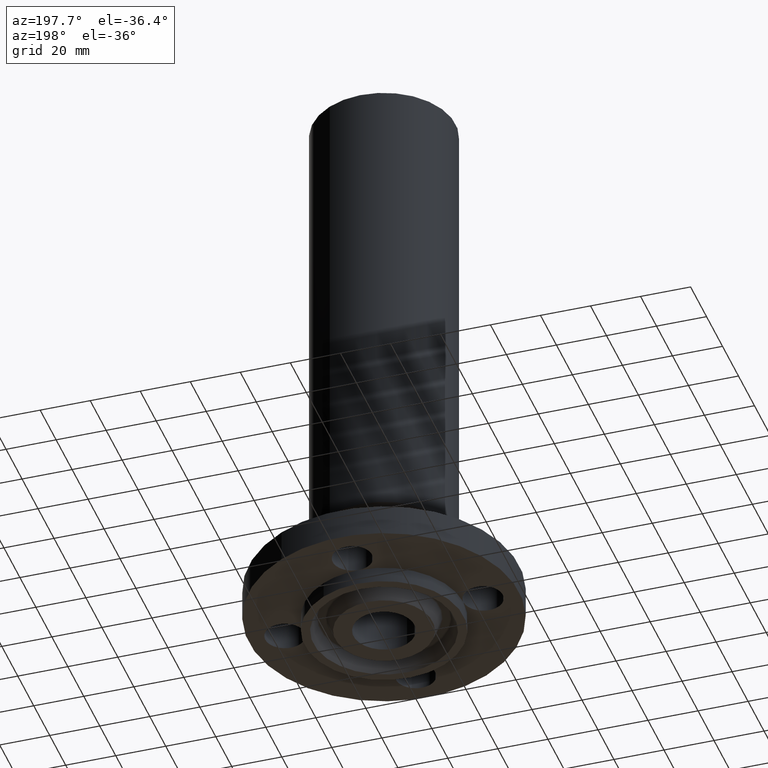
[diagram: clean part render]
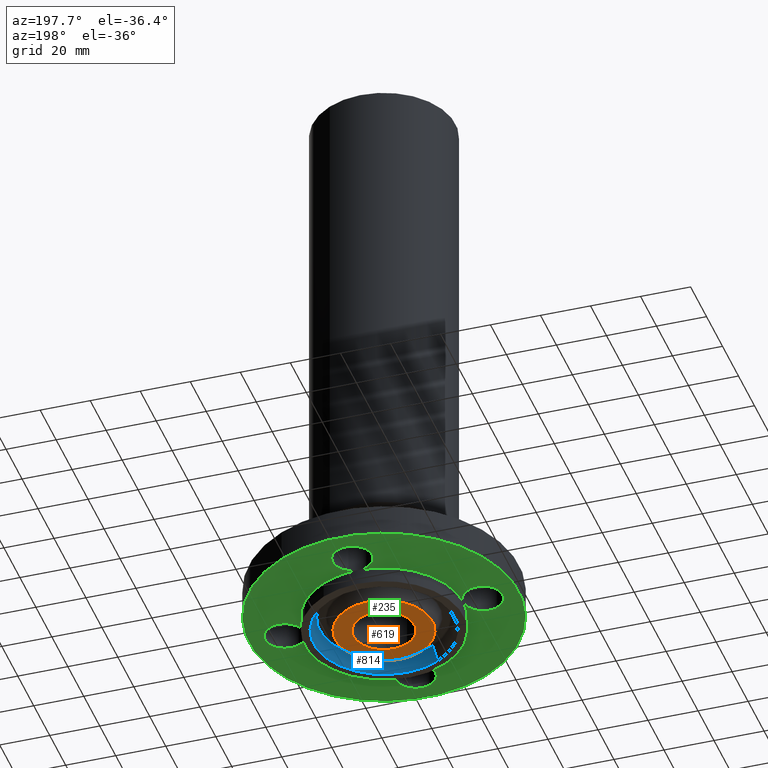
[diagram: same view with three faces highlighted in distinct colors, each labeled with its STEP entity id]
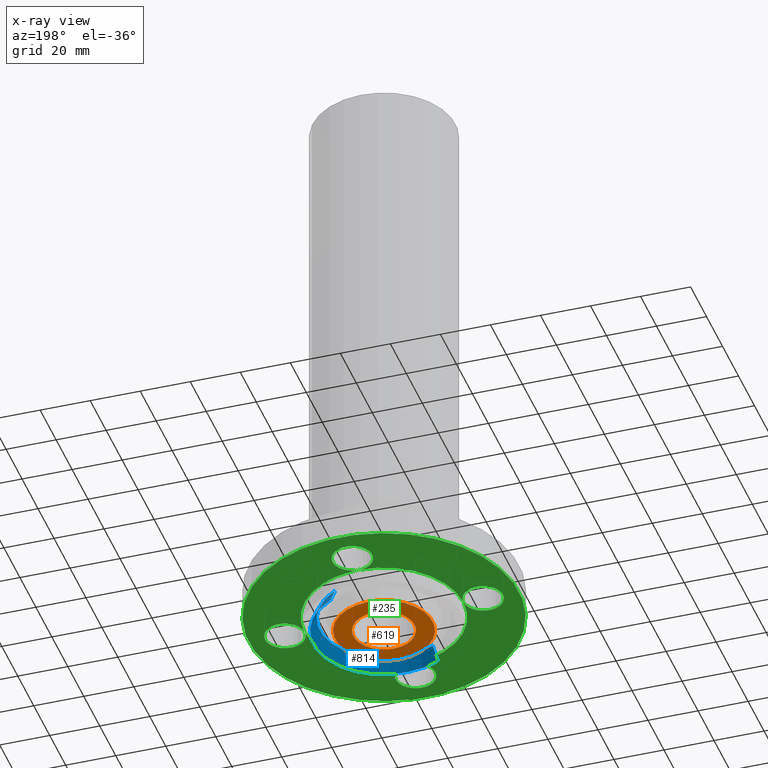
[diagram: x-ray of the same camera — body ghosted, the three highlighted faces saturated]
A machine part, auxiliary view with three faces highlighted in distinct colors.
The next image is the same camera in x-ray (body ghosted, the three faces saturated) — at least one of them is partly hidden behind the body in this view.
Their STEP definitions:

[orange] entity #619 — the highlighted planar face has unit normal (0, 0, -1).
#563=AXIS2_PLACEMENT_3D('Circle Axis2P3D',#561,#562,$) ;
#582=AXIS2_PLACEMENT_3D('Circle Axis2P3D',#580,#581,$) ;
#595=AXIS2_PLACEMENT_3D('Plane Axis2P3D',#592,#593,#594) ;
#599=AXIS2_PLACEMENT_3D('Circle Axis2P3D',#597,#598,$) ;
#608=AXIS2_PLACEMENT_3D('Circle Axis2P3D',#606,#607,$) ;
#558=CARTESIAN_POINT('Vertex',(0.230124258531,0.421239629709,-0.250000000001)) ;
#561=CARTESIAN_POINT('Axis2P3D Location',(0.,0.,-0.250000000001)) ;
#565=CARTESIAN_POINT('Vertex',(-0.230124258531,-0.421239629709,-0.250000000001)) ;
#580=CARTESIAN_POINT('Axis2P3D Location',(0.,0.,-0.250000000001)) ;
#592=CARTESIAN_POINT('Axis2P3D Location',(0.,0.765500000003,-0.250000000001)) ;
#597=CARTESIAN_POINT('Axis2P3D Location',(0.,0.,-0.250000000001)) ;
#601=CARTESIAN_POINT('Vertex',(-0.367000249803,-0.67178945113,-0.250000000001)) ;
#603=CARTESIAN_POINT('Vertex',(0.367000249803,0.67178945113,-0.250000000001)) ;
#606=CARTESIAN_POINT('Axis2P3D Location',(0.,0.,-0.250000000001)) ;
#562=DIRECTION('Axis2P3D Direction',(0.,0.,-0.0393700787402)) ;
#581=DIRECTION('Axis2P3D Direction',(0.,0.,-0.0393700787402)) ;
#593=DIRECTION('Axis2P3D Direction',(0.,0.,-0.0393700787402)) ;
#594=DIRECTION('Axis2P3D XDirection',(0.0393700787402,0.,0.)) ;
#598=DIRECTION('Axis2P3D Direction',(0.,0.,-0.0393700787402)) ;
#607=DIRECTION('Axis2P3D Direction',(0.,0.,-0.0393700787402)) ;
#612=ORIENTED_EDGE('',*,*,#605,.T.) ;
#613=ORIENTED_EDGE('',*,*,#610,.T.) ;
#616=ORIENTED_EDGE('',*,*,#567,.F.) ;
#617=ORIENTED_EDGE('',*,*,#584,.F.) ;
#618=FACE_BOUND('',#615,.T.) ;
#619=ADVANCED_FACE('PartBody',(#614,#618),#596,.T.) ;
#564=CIRCLE('generated circle',#563,0.480000000002) ;
#583=CIRCLE('generated circle',#582,0.480000000002) ;
#600=CIRCLE('generated circle',#599,0.765500000003) ;
#609=CIRCLE('generated circle',#608,0.765500000003) ;
#567=EDGE_CURVE('',#559,#566,#564,.T.) ;
#584=EDGE_CURVE('',#566,#559,#583,.T.) ;
#605=EDGE_CURVE('',#602,#604,#600,.T.) ;
#610=EDGE_CURVE('',#604,#602,#609,.T.) ;
#611=EDGE_LOOP('',(#612,#613)) ;
#615=EDGE_LOOP('',(#616,#617)) ;
#614=FACE_OUTER_BOUND('',#611,.T.) ;
#596=PLANE('',#595) ;
#559=VERTEX_POINT('',#558) ;
#566=VERTEX_POINT('',#565) ;
#602=VERTEX_POINT('',#601) ;
#604=VERTEX_POINT('',#603) ;

[blue] entity #814 — the highlighted conical surface has half-angle 23 deg.
#762=AXIS2_PLACEMENT_3D('Circle Axis2P3D',#760,#761,$) ;
#775=AXIS2_PLACEMENT_3D('Cone Axis2P3D',#772,#773,#774) ;
#805=AXIS2_PLACEMENT_3D('Circle Axis2P3D',#803,#804,$) ;
#738=CARTESIAN_POINT('Vertex',(-0.484890267735,-0.887585681467,-0.0188873350169)) ;
#745=CARTESIAN_POINT('Vertex',(0.484890267735,0.887585681467,-0.0188873350169)) ;
#760=CARTESIAN_POINT('Axis2P3D Location',(0.,0.,-0.0188873350169)) ;
#772=CARTESIAN_POINT('Axis2P3D Location',(0.,0.,-0.0188873350169)) ;
#777=CARTESIAN_POINT('Line Origine',(-0.508406451409,-0.930631766944,-0.134443667509)) ;
#781=CARTESIAN_POINT('Vertex',(-0.531922635083,-0.973677852421,-0.250000000001)) ;
#788=CARTESIAN_POINT('Vertex',(0.531922635083,0.973677852421,-0.250000000001)) ;
#791=CARTESIAN_POINT('Line Origine',(0.508406451409,0.930631766944,-0.134443667509)) ;
#803=CARTESIAN_POINT('Axis2P3D Location',(0.,0.,-0.250000000001)) ;
#761=DIRECTION('Axis2P3D Direction',(0.,0.,-0.0393700787402)) ;
#773=DIRECTION('Axis2P3D Direction',(0.,0.,-0.0393700787402)) ;
#774=DIRECTION('Axis2P3D XDirection',(0.0188750212049,0.0345504945626,0.)) ;
#778=DIRECTION('Vector Direction',(-0.00737505833565,-0.0134999537303,-0.0362403485611)) ;
#792=DIRECTION('Vector Direction',(0.00737505833565,0.0134999537303,-0.0362403485611)) ;
#804=DIRECTION('Axis2P3D Direction',(0.,0.,-0.0393700787402)) ;
#779=VECTOR('Line Direction',#778,0.0393700787402) ;
#793=VECTOR('Line Direction',#792,0.0393700787402) ;
#809=ORIENTED_EDGE('',*,*,#764,.F.) ;
#810=ORIENTED_EDGE('',*,*,#795,.T.) ;
#811=ORIENTED_EDGE('',*,*,#807,.T.) ;
#812=ORIENTED_EDGE('',*,*,#783,.F.) ;
#814=ADVANCED_FACE('PartBody',(#813),#776,.F.) ;
#763=CIRCLE('generated circle',#762,1.01139849401) ;
#806=CIRCLE('generated circle',#805,1.1095) ;
#776=CONICAL_SURFACE('Cone',#775,1.01139849401,0.401425727959) ;
#764=EDGE_CURVE('',#746,#739,#763,.T.) ;
#783=EDGE_CURVE('',#739,#782,#780,.T.) ;
#795=EDGE_CURVE('',#746,#789,#794,.T.) ;
#807=EDGE_CURVE('',#789,#782,#806,.T.) ;
#808=EDGE_LOOP('',(#809,#810,#811,#812)) ;
#813=FACE_OUTER_BOUND('',#808,.T.) ;
#780=LINE('Line',#777,#779) ;
#794=LINE('Line',#791,#793) ;
#739=VERTEX_POINT('',#738) ;
#746=VERTEX_POINT('',#745) ;
#782=VERTEX_POINT('',#781) ;
#789=VERTEX_POINT('',#788) ;

[green] entity #235 — the highlighted planar face has unit normal (0, 0, -1).
#65=AXIS2_PLACEMENT_3D('Circle Axis2P3D',#63,#64,$) ;
#78=AXIS2_PLACEMENT_3D('Plane Axis2P3D',#75,#76,#77) ;
#82=AXIS2_PLACEMENT_3D('Circle Axis2P3D',#80,#81,$) ;
#91=AXIS2_PLACEMENT_3D('Circle Axis2P3D',#89,#90,$) ;
#100=AXIS2_PLACEMENT_3D('Circle Axis2P3D',#98,#99,$) ;
#109=AXIS2_PLACEMENT_3D('Circle Axis2P3D',#107,#108,$) ;
#116=AXIS2_PLACEMENT_3D('Circle Axis2P3D',#114,#115,$) ;
#126=AXIS2_PLACEMENT_3D('Circle Axis2P3D',#124,#125,$) ;
#133=AXIS2_PLACEMENT_3D('Circle Axis2P3D',#131,#132,$) ;
#140=AXIS2_PLACEMENT_3D('Circle Axis2P3D',#138,#139,$) ;
#147=AXIS2_PLACEMENT_3D('Circle Axis2P3D',#145,#146,$) ;
#154=AXIS2_PLACEMENT_3D('Circle Axis2P3D',#152,#153,$) ;
#161=AXIS2_PLACEMENT_3D('Circle Axis2P3D',#159,#160,$) ;
#174=AXIS2_PLACEMENT_3D('Circle Axis2P3D',#172,#173,$) ;
#181=AXIS2_PLACEMENT_3D('Circle Axis2P3D',#179,#180,$) ;
#188=AXIS2_PLACEMENT_3D('Circle Axis2P3D',#186,#187,$) ;
#198=AXIS2_PLACEMENT_3D('Circle Axis2P3D',#196,#197,$) ;
#203=AXIS2_PLACEMENT_3D('Circle Axis2P3D',#201,#202,$) ;
#213=AXIS2_PLACEMENT_3D('Circle Axis2P3D',#211,#212,$) ;
#220=AXIS2_PLACEMENT_3D('Circle Axis2P3D',#218,#219,$) ;
#227=AXIS2_PLACEMENT_3D('Circle Axis2P3D',#225,#226,$) ;
#46=CARTESIAN_POINT('Vertex',(1.28794940582,-0.148621916968,2.2401153548E-016)) ;
#60=CARTESIAN_POINT('Vertex',(1.83205059419,0.148621916968,2.2401153548E-016)) ;
#63=CARTESIAN_POINT('Axis2P3D Location',(1.56000000001,0.,0.)) ;
#75=CARTESIAN_POINT('Axis2P3D Location',(0.,0.892137156453,0.)) ;
#80=CARTESIAN_POINT('Axis2P3D Location',(0.,0.,0.)) ;
#84=CARTESIAN_POINT('Vertex',(-1.01877926954,-1.86486294402,0.)) ;
#86=CARTESIAN_POINT('Vertex',(1.01877926954,1.86486294402,0.)) ;
#89=CARTESIAN_POINT('Axis2P3D Location',(0.,0.,0.)) ;
#98=CARTESIAN_POINT('Axis2P3D Location',(-1.56000000001,-2.79741234551E-016,0.)) ;
#102=CARTESIAN_POINT('Vertex',(-1.28794940582,0.148621916968,0.)) ;
#104=CARTESIAN_POINT('Vertex',(-1.25000000001,-1.39870617276E-016,0.)) ;
#107=CARTESIAN_POINT('Axis2P3D Location',(-1.56000000001,-2.79741234551E-016,0.)) ;
#111=CARTESIAN_POINT('Vertex',(-1.83205059419,-0.148621916968,2.2401153548E-016)) ;
#114=CARTESIAN_POINT('Axis2P3D Location',(-1.56000000001,-2.79741234551E-016,0.)) ;
#124=CARTESIAN_POINT('Axis2P3D Location',(0.,0.,0.)) ;
#128=CARTESIAN_POINT('Vertex',(-0.599281923258,-1.09697820237,0.)) ;
#131=CARTESIAN_POINT('Axis2P3D Location',(0.,0.,0.)) ;
#135=CARTESIAN_POINT('Vertex',(-1.26881384798E-016,-1.25000000001,0.)) ;
#138=CARTESIAN_POINT('Axis2P3D Location',(0.,0.,0.)) ;
#142=CARTESIAN_POINT('Vertex',(1.25000000001,-1.91428434947E-015,0.)) ;
#145=CARTESIAN_POINT('Axis2P3D Location',(0.,0.,0.)) ;
#149=CARTESIAN_POINT('Vertex',(0.599281923258,1.09697820237,0.)) ;
#152=CARTESIAN_POINT('Axis2P3D Location',(0.,0.,0.)) ;
#156=CARTESIAN_POINT('Vertex',(-2.96828344594E-016,1.25000000001,0.)) ;
#159=CARTESIAN_POINT('Axis2P3D Location',(0.,0.,0.)) ;
#172=CARTESIAN_POINT('Axis2P3D Location',(-6.99353086378E-017,-1.56000000001,0.)) ;
#176=CARTESIAN_POINT('Vertex',(-0.148621916968,-1.28794940582,0.)) ;
#179=CARTESIAN_POINT('Axis2P3D Location',(-4.54579506146E-016,-1.56000000001,0.)) ;
#183=CARTESIAN_POINT('Vertex',(0.148621916968,-1.83205059419,2.2401153548E-016)) ;
#186=CARTESIAN_POINT('Axis2P3D Location',(-6.99353086378E-017,-1.56000000001,0.)) ;
#196=CARTESIAN_POINT('Axis2P3D Location',(1.56000000001,1.39870617276E-016,0.)) ;
#201=CARTESIAN_POINT('Axis2P3D Location',(1.56000000001,1.39870617276E-016,0.)) ;
#211=CARTESIAN_POINT('Axis2P3D Location',(-3.84644197508E-016,1.56000000001,0.)) ;
#215=CARTESIAN_POINT('Vertex',(0.148621916968,1.28794940582,0.)) ;
#218=CARTESIAN_POINT('Axis2P3D Location',(-2.79741234551E-016,1.56000000001,0.)) ;
#222=CARTESIAN_POINT('Vertex',(-0.148621916968,1.83205059419,2.2401153548E-016)) ;
#225=CARTESIAN_POINT('Axis2P3D Location',(-3.84644197508E-016,1.56000000001,0.)) ;
#64=DIRECTION('Axis2P3D Direction',(0.,-0.,0.0393700787402)) ;
#76=DIRECTION('Axis2P3D Direction',(0.,0.,-0.0393700787402)) ;
#77=DIRECTION('Axis2P3D XDirection',(0.0393700787402,0.,0.)) ;
#81=DIRECTION('Axis2P3D Direction',(0.,0.,-0.0393700787402)) ;
#90=DIRECTION('Axis2P3D Direction',(0.,0.,-0.0393700787402)) ;
#99=DIRECTION('Axis2P3D Direction',(0.,0.,-0.0393700787402)) ;
#108=DIRECTION('Axis2P3D Direction',(0.,0.,-0.0393700787402)) ;
#115=DIRECTION('Axis2P3D Direction',(0.,0.,-0.0393700787402)) ;
#125=DIRECTION('Axis2P3D Direction',(0.,0.,-0.0393700787402)) ;
#132=DIRECTION('Axis2P3D Direction',(0.,0.,-0.0393700787402)) ;
#139=DIRECTION('Axis2P3D Direction',(0.,0.,-0.0393700787402)) ;
#146=DIRECTION('Axis2P3D Direction',(0.,0.,-0.0393700787402)) ;
#153=DIRECTION('Axis2P3D Direction',(0.,0.,-0.0393700787402)) ;
#160=DIRECTION('Axis2P3D Direction',(0.,0.,-0.0393700787402)) ;
#173=DIRECTION('Axis2P3D Direction',(0.,0.,-0.0393700787402)) ;
#180=DIRECTION('Axis2P3D Direction',(0.,0.,-0.0393700787402)) ;
#187=DIRECTION('Axis2P3D Direction',(0.,0.,-0.0393700787402)) ;
#197=DIRECTION('Axis2P3D Direction',(0.,0.,-0.0393700787402)) ;
#202=DIRECTION('Axis2P3D Direction',(0.,0.,-0.0393700787402)) ;
#212=DIRECTION('Axis2P3D Direction',(0.,0.,-0.0393700787402)) ;
#219=DIRECTION('Axis2P3D Direction',(0.,0.,-0.0393700787402)) ;
#226=DIRECTION('Axis2P3D Direction',(0.,0.,-0.0393700787402)) ;
#95=ORIENTED_EDGE('',*,*,#88,.T.) ;
#96=ORIENTED_EDGE('',*,*,#93,.T.) ;
#120=ORIENTED_EDGE('',*,*,#106,.F.) ;
#121=ORIENTED_EDGE('',*,*,#113,.F.) ;
#122=ORIENTED_EDGE('',*,*,#118,.F.) ;
#165=ORIENTED_EDGE('',*,*,#130,.F.) ;
#166=ORIENTED_EDGE('',*,*,#137,.F.) ;
#167=ORIENTED_EDGE('',*,*,#144,.F.) ;
#168=ORIENTED_EDGE('',*,*,#151,.F.) ;
#169=ORIENTED_EDGE('',*,*,#158,.F.) ;
#170=ORIENTED_EDGE('',*,*,#163,.F.) ;
#192=ORIENTED_EDGE('',*,*,#178,.F.) ;
#193=ORIENTED_EDGE('',*,*,#185,.F.) ;
#194=ORIENTED_EDGE('',*,*,#190,.F.) ;
#207=ORIENTED_EDGE('',*,*,#200,.F.) ;
#208=ORIENTED_EDGE('',*,*,#67,.F.) ;
#209=ORIENTED_EDGE('',*,*,#205,.F.) ;
#231=ORIENTED_EDGE('',*,*,#217,.F.) ;
#232=ORIENTED_EDGE('',*,*,#224,.F.) ;
#233=ORIENTED_EDGE('',*,*,#229,.F.) ;
#123=FACE_BOUND('',#119,.T.) ;
#171=FACE_BOUND('',#164,.T.) ;
#195=FACE_BOUND('',#191,.T.) ;
#210=FACE_BOUND('',#206,.T.) ;
#234=FACE_BOUND('',#230,.T.) ;
#235=ADVANCED_FACE('PartBody',(#97,#123,#171,#195,#210,#234),#79,.T.) ;
#66=CIRCLE('generated circle',#65,0.310000000001) ;
#83=CIRCLE('generated circle',#82,2.12500000001) ;
#92=CIRCLE('generated circle',#91,2.12500000001) ;
#101=CIRCLE('generated circle',#100,0.310000000001) ;
#110=CIRCLE('generated circle',#109,0.310000000001) ;
#117=CIRCLE('generated circle',#116,0.310000000001) ;
#127=CIRCLE('generated circle',#126,1.25000000001) ;
#134=CIRCLE('generated circle',#133,1.25000000001) ;
#141=CIRCLE('generated circle',#140,1.25000000001) ;
#148=CIRCLE('generated circle',#147,1.25000000001) ;
#155=CIRCLE('generated circle',#154,1.25000000001) ;
#162=CIRCLE('generated circle',#161,1.25000000001) ;
#175=CIRCLE('generated circle',#174,0.310000000001) ;
#182=CIRCLE('generated circle',#181,0.310000000001) ;
#189=CIRCLE('generated circle',#188,0.310000000001) ;
#199=CIRCLE('generated circle',#198,0.310000000001) ;
#204=CIRCLE('generated circle',#203,0.310000000001) ;
#214=CIRCLE('generated circle',#213,0.310000000001) ;
#221=CIRCLE('generated circle',#220,0.310000000001) ;
#228=CIRCLE('generated circle',#227,0.310000000001) ;
#67=EDGE_CURVE('',#61,#47,#66,.F.) ;
#88=EDGE_CURVE('',#85,#87,#83,.T.) ;
#93=EDGE_CURVE('',#87,#85,#92,.T.) ;
#106=EDGE_CURVE('',#103,#105,#101,.T.) ;
#113=EDGE_CURVE('',#112,#103,#110,.T.) ;
#118=EDGE_CURVE('',#105,#112,#117,.T.) ;
#130=EDGE_CURVE('',#129,#105,#127,.T.) ;
#137=EDGE_CURVE('',#136,#129,#134,.T.) ;
#144=EDGE_CURVE('',#143,#136,#141,.T.) ;
#151=EDGE_CURVE('',#150,#143,#148,.T.) ;
#158=EDGE_CURVE('',#157,#150,#155,.T.) ;
#163=EDGE_CURVE('',#105,#157,#162,.T.) ;
#178=EDGE_CURVE('',#177,#136,#175,.T.) ;
#185=EDGE_CURVE('',#184,#177,#182,.T.) ;
#190=EDGE_CURVE('',#136,#184,#189,.T.) ;
#200=EDGE_CURVE('',#47,#143,#199,.T.) ;
#205=EDGE_CURVE('',#143,#61,#204,.T.) ;
#217=EDGE_CURVE('',#216,#157,#214,.T.) ;
#224=EDGE_CURVE('',#223,#216,#221,.T.) ;
#229=EDGE_CURVE('',#157,#223,#228,.T.) ;
#94=EDGE_LOOP('',(#95,#96)) ;
#119=EDGE_LOOP('',(#120,#121,#122)) ;
#164=EDGE_LOOP('',(#165,#166,#167,#168,#169,#170)) ;
#191=EDGE_LOOP('',(#192,#193,#194)) ;
#206=EDGE_LOOP('',(#207,#208,#209)) ;
#230=EDGE_LOOP('',(#231,#232,#233)) ;
#97=FACE_OUTER_BOUND('',#94,.T.) ;
#79=PLANE('',#78) ;
#47=VERTEX_POINT('',#46) ;
#61=VERTEX_POINT('',#60) ;
#85=VERTEX_POINT('',#84) ;
#87=VERTEX_POINT('',#86) ;
#103=VERTEX_POINT('',#102) ;
#105=VERTEX_POINT('',#104) ;
#112=VERTEX_POINT('',#111) ;
#129=VERTEX_POINT('',#128) ;
#136=VERTEX_POINT('',#135) ;
#143=VERTEX_POINT('',#142) ;
#150=VERTEX_POINT('',#149) ;
#157=VERTEX_POINT('',#156) ;
#177=VERTEX_POINT('',#176) ;
#184=VERTEX_POINT('',#183) ;
#216=VERTEX_POINT('',#215) ;
#223=VERTEX_POINT('',#222) ;